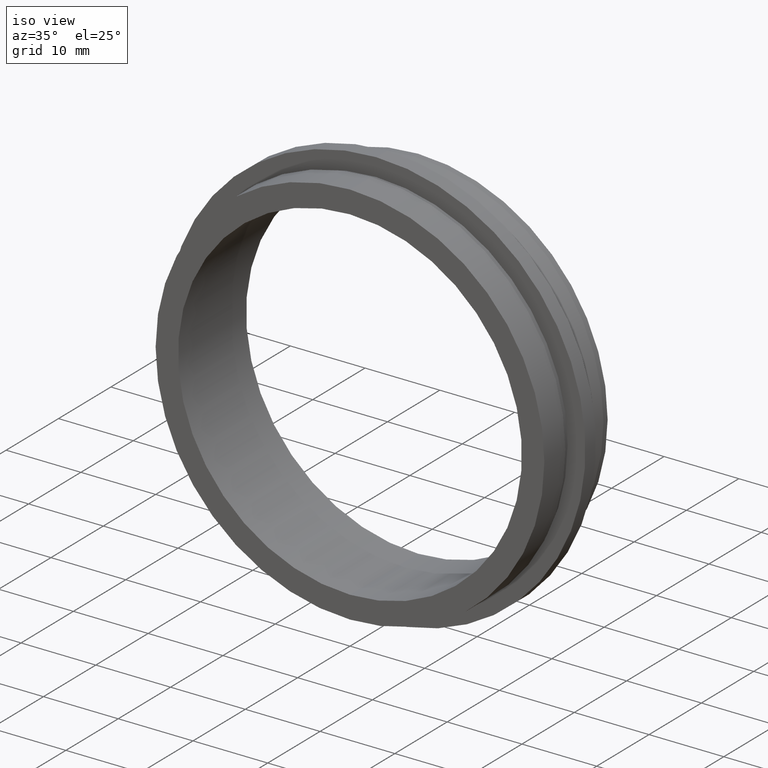
[diagram: clean part render]
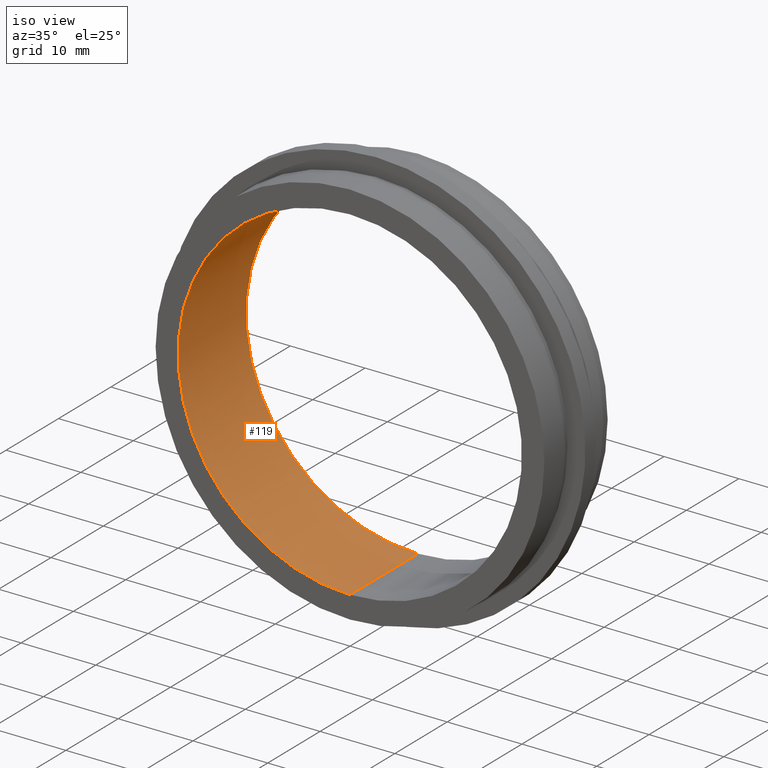
[diagram: same view with one face highlighted and labeled with its STEP entity id]
A machine part, iso view. The second image highlights one B-rep face of the part: STEP entity #119.
In plain terms, the highlighted cylindrical surface (partial cylindrical patch) has radius 23 mm, axis along (-0, -1, -0).
Its self-contained STEP definition (entity closure, byte-faithful):
#21 = ORIENTED_EDGE ( 'NONE', *, *, #272, .F. ) ;
#24 = ORIENTED_EDGE ( 'NONE', *, *, #496, .F. ) ;
#34 = VERTEX_POINT ( 'NONE', #418 ) ;
#42 = AXIS2_PLACEMENT_3D ( 'NONE', #309, #570, #329 ) ;
#87 = CARTESIAN_POINT ( 'NONE',  ( 0.0000000000000000000, 0.0000000000000000000, -23.00000000000000000 ) ) ;
#88 = CARTESIAN_POINT ( 'NONE',  ( 0.0000000000000000000, -8.673617379884035500E-016, 0.0000000000000000000 ) ) ;
#101 = CIRCLE ( 'NONE', #478, 23.00000000000000000 ) ;
#119 = ADVANCED_FACE ( 'NONE', ( #460 ), #343, .F. ) ;
#129 = EDGE_LOOP ( 'NONE', ( #24, #541, #660, #21 ) ) ;
#135 = DIRECTION ( 'NONE',  ( 0.0000000000000000000, 0.0000000000000000000, -1.000000000000000000 ) ) ;
#216 = CARTESIAN_POINT ( 'NONE',  ( 0.0000000000000000000, -8.673617379884035500E-016, -23.00000000000000000 ) ) ;
#230 = CARTESIAN_POINT ( 'NONE',  ( 0.0000000000000000000, 13.00000000000000200, 0.0000000000000000000 ) ) ;
#231 = DIRECTION ( 'NONE',  ( -0.0000000000000000000, -1.000000000000000000, -0.0000000000000000000 ) ) ;
#239 = DIRECTION ( 'NONE',  ( -0.0000000000000000000, -1.000000000000000000, -0.0000000000000000000 ) ) ;
#272 = EDGE_CURVE ( 'NONE', #474, #311, #655, .T. ) ;
#283 = CIRCLE ( 'NONE', #605, 23.00000000000000000 ) ;
#309 = CARTESIAN_POINT ( 'NONE',  ( 0.0000000000000000000, 0.0000000000000000000, 0.0000000000000000000 ) ) ;
#311 = VERTEX_POINT ( 'NONE', #216 ) ;
#322 = CARTESIAN_POINT ( 'NONE',  ( 0.0000000000000000000, 13.00000000000000200, -23.00000000000000000 ) ) ;
#329 = DIRECTION ( 'NONE',  ( 0.0000000000000000000, 0.0000000000000000000, -1.000000000000000000 ) ) ;
#343 = CYLINDRICAL_SURFACE ( 'NONE', #42, 23.00000000000000000 ) ;
#350 = VECTOR ( 'NONE', #231, 1000.000000000000000 ) ;
#372 = DIRECTION ( 'NONE',  ( -0.0000000000000000000, -1.000000000000000000, -0.0000000000000000000 ) ) ;
#391 = DIRECTION ( 'NONE',  ( -0.0000000000000000000, -1.000000000000000000, -0.0000000000000000000 ) ) ;
#406 = VERTEX_POINT ( 'NONE', #584 ) ;
#418 = CARTESIAN_POINT ( 'NONE',  ( 2.816687638038912400E-015, 13.00000000000000200, 23.00000000000000000 ) ) ;
#460 = FACE_OUTER_BOUND ( 'NONE', #129, .T. ) ;
#474 = VERTEX_POINT ( 'NONE', #322 ) ;
#478 = AXIS2_PLACEMENT_3D ( 'NONE', #88, #239, #135 ) ;
#495 = CARTESIAN_POINT ( 'NONE',  ( 2.816687638038912400E-015, 0.0000000000000000000, 23.00000000000000000 ) ) ;
#496 = EDGE_CURVE ( 'NONE', #34, #474, #283, .T. ) ;
#500 = LINE ( 'NONE', #495, #350 ) ;
#541 = ORIENTED_EDGE ( 'NONE', *, *, #568, .T. ) ;
#552 = DIRECTION ( 'NONE',  ( 0.0000000000000000000, 0.0000000000000000000, -1.000000000000000000 ) ) ;
#561 = VECTOR ( 'NONE', #391, 1000.000000000000000 ) ;
#568 = EDGE_CURVE ( 'NONE', #34, #406, #500, .T. ) ;
#570 = DIRECTION ( 'NONE',  ( -0.0000000000000000000, -1.000000000000000000, -0.0000000000000000000 ) ) ;
#584 = CARTESIAN_POINT ( 'NONE',  ( 2.816687638038912400E-015, -8.673617379884035500E-016, 23.00000000000000000 ) ) ;
#605 = AXIS2_PLACEMENT_3D ( 'NONE', #230, #372, #552 ) ;
#619 = EDGE_CURVE ( 'NONE', #406, #311, #101, .T. ) ;
#655 = LINE ( 'NONE', #87, #561 ) ;
#660 = ORIENTED_EDGE ( 'NONE', *, *, #619, .T. ) ;